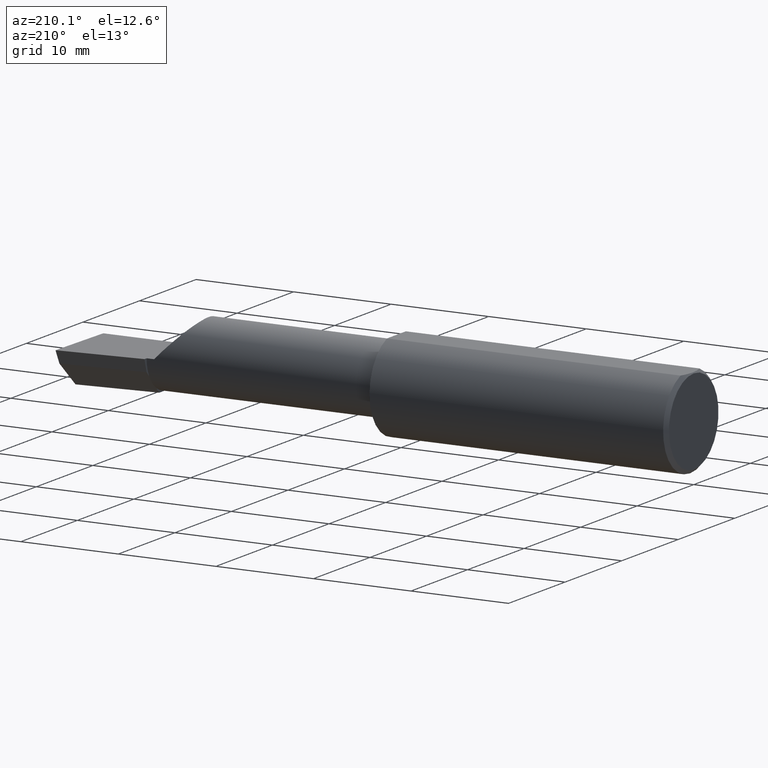
[diagram: clean part render]
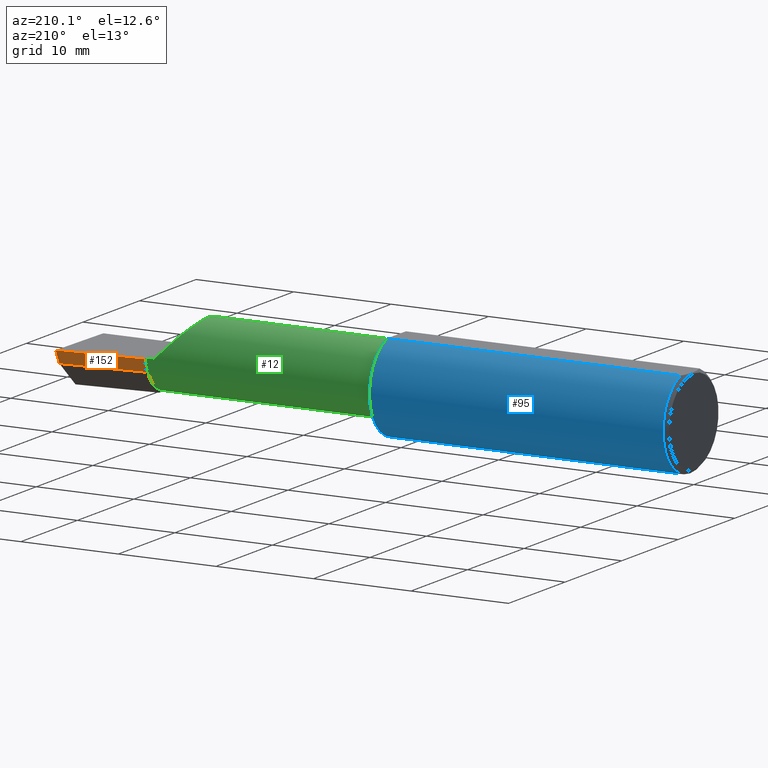
[diagram: same view with three faces highlighted in distinct colors, each labeled with its STEP entity id]
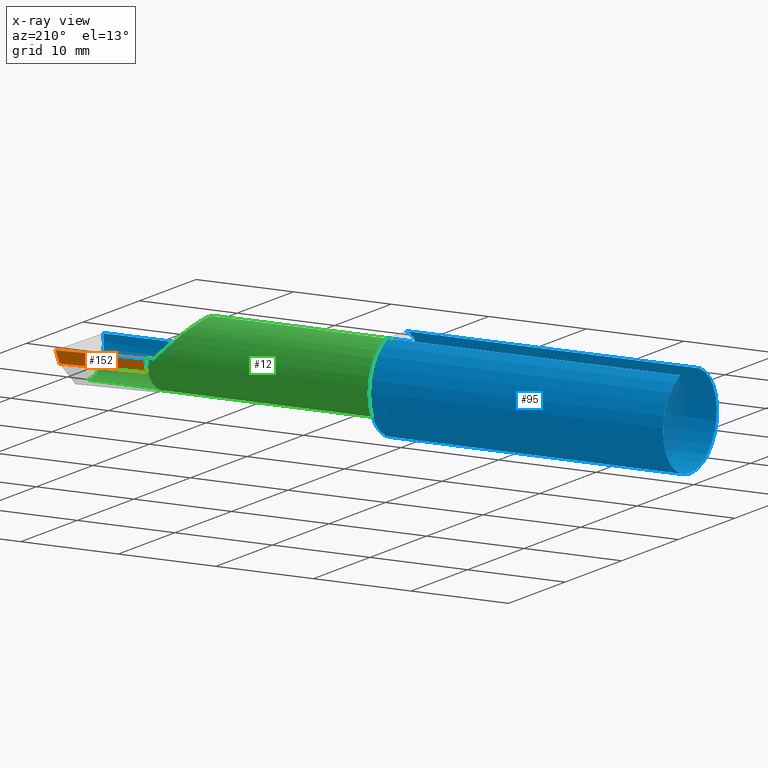
[diagram: x-ray of the same camera — body ghosted, the three highlighted faces saturated]
A machine part, auxiliary view with three faces highlighted in distinct colors.
The next image is the same camera in x-ray (body ghosted, the three faces saturated) — at least one of them is partly hidden behind the body in this view.
Their STEP definitions:

[orange] entity #152 — the highlighted planar face has unit normal (-0.0917, 0.9519, -0.2924).
#14 = DIRECTION ( 'NONE',  ( -0.9953961983671800740, -0.09584575252021031166, 0.000000000000000000 ) ) ;
#42 = VERTEX_POINT ( 'NONE', #310 ) ;
#68 = FACE_OUTER_BOUND ( 'NONE', #281, .T. ) ;
#96 = AXIS2_PLACEMENT_3D ( 'NONE', #259, #208, #403 ) ;
#108 = VECTOR ( 'NONE', #396, 39.37007874015748143 ) ;
#115 = DIRECTION ( 'NONE',  ( 2.005228508682077051E-18, -0.2936076258024061247, -0.9559260233253795702 ) ) ;
#116 = EDGE_CURVE ( 'NONE', #529, #383, #549, .T. ) ;
#134 = ORIENTED_EDGE ( 'NONE', *, *, #279, .F. ) ;
#150 = CARTESIAN_POINT ( 'NONE',  ( 2.160000000000000142, 0.08255448787293394319, -0.04999999999999999584 ) ) ;
#152 = ADVANCED_FACE ( 'NONE', ( #68 ), #360, .T. ) ;
#168 = CARTESIAN_POINT ( 'NONE',  ( 2.160000000000000142, 0.09456875743780468468, -0.01088401009027229437 ) ) ;
#208 = DIRECTION ( 'NONE',  ( -0.09165774897393341725, 0.9519021185660614393, -0.2923717047227303301 ) ) ;
#253 = CARTESIAN_POINT ( 'NONE',  ( 0.5470260790800316464, -0.05740000000000000657, 2.701812985571356346E-16 ) ) ;
#259 = CARTESIAN_POINT ( 'NONE',  ( 2.509953961983673043, 0.1316084575252021716, -6.829619984160658046E-17 ) ) ;
#273 = ORIENTED_EDGE ( 'NONE', *, *, #411, .T. ) ;
#279 = EDGE_CURVE ( 'NONE', #42, #381, #478, .T. ) ;
#281 = EDGE_LOOP ( 'NONE', ( #134, #416, #433, #273 ) ) ;
#294 = VECTOR ( 'NONE', #583, 39.37007874015748143 ) ;
#310 = CARTESIAN_POINT ( 'NONE',  ( 2.493439983562941720, 0.1146611065212078395, -0.04999999999999999584 ) ) ;
#314 = VECTOR ( 'NONE', #115, 39.37007874015748143 ) ;
#359 = LINE ( 'NONE', #496, #386 ) ;
#360 = PLANE ( 'NONE',  #96 ) ;
#381 = VERTEX_POINT ( 'NONE', #442 ) ;
#383 = VERTEX_POINT ( 'NONE', #150 ) ;
#386 = VECTOR ( 'NONE', #14, 39.37007874015748854 ) ;
#393 = LINE ( 'NONE', #253, #108 ) ;
#396 = DIRECTION ( 'NONE',  ( 0.9953961983671787417, 0.09584575252022459191, -1.028972571603813720E-16 ) ) ;
#398 = EDGE_CURVE ( 'NONE', #42, #383, #359, .T. ) ;
#403 = DIRECTION ( 'NONE',  ( 0.000000000000000000, 0.2936076258024060137, 0.9559260233253795702 ) ) ;
#411 = EDGE_CURVE ( 'NONE', #529, #381, #393, .T. ) ;
#416 = ORIENTED_EDGE ( 'NONE', *, *, #398, .T. ) ;
#433 = ORIENTED_EDGE ( 'NONE', *, *, #116, .F. ) ;
#442 = CARTESIAN_POINT ( 'NONE',  ( 2.499999999999978684, 0.1306500000000237749, 8.405341369881224661E-14 ) ) ;
#470 = CARTESIAN_POINT ( 'NONE',  ( 2.160000000000000142, 0.09791172361284168624, 3.286754617377316716E-16 ) ) ;
#478 = LINE ( 'NONE', #566, #294 ) ;
#496 = CARTESIAN_POINT ( 'NONE',  ( 2.511419111345318811, 0.1163922996227946677, -0.04999999999999999584 ) ) ;
#529 = VERTEX_POINT ( 'NONE', #470 ) ;
#549 = LINE ( 'NONE', #168, #314 ) ;
#566 = CARTESIAN_POINT ( 'NONE',  ( 2.500188977433779769, 0.1311105994646662165, 0.001440373173041438384 ) ) ;
#583 = DIRECTION ( 'NONE',  ( 0.1240019227988267692, 0.3022330132596589558, 0.9451342385281472636 ) ) ;

[blue] entity #95 — the highlighted cylindrical surface (partial cylindrical patch) has radius 4.7587 mm, axis along (-1, -0, -0).
#6 = CARTESIAN_POINT ( 'NONE',  ( 2.066758987970638284, -0.1792580844883770730, 0.06324101202936138755 ) ) ;
#9 = CARTESIAN_POINT ( 'NONE',  ( 2.038695632261437130, -0.1635956445993029529, 0.09130436773856188959 ) ) ;
#10 = EDGE_CURVE ( 'NONE', #245, #576, #148, .T. ) ;
#17 = FACE_OUTER_BOUND ( 'NONE', #329, .T. ) ;
#18 = DIRECTION ( 'NONE',  ( 0.000000000000000000, 0.000000000000000000, 1.000000000000000000 ) ) ;
#21 = AXIS2_PLACEMENT_3D ( 'NONE', #495, #151, #500 ) ;
#22 = DIRECTION ( 'NONE',  ( 0.000000000000000000, 0.000000000000000000, 1.000000000000000000 ) ) ;
#23 = CARTESIAN_POINT ( 'NONE',  ( 1.199999999999999956, -0.09715400696864127938, 0.1601908905959923690 ) ) ;
#26 = CARTESIAN_POINT ( 'NONE',  ( 1.218001859868117043, -0.1612625562479372554, 0.09537826053888157074 ) ) ;
#27 = DIRECTION ( 'NONE',  ( -1.000000000000000000, -0.000000000000000000, -0.000000000000000000 ) ) ;
#28 = EDGE_CURVE ( 'NONE', #187, #472, #323, .T. ) ;
#32 = DIRECTION ( 'NONE',  ( 0.000000000000000000, 1.000000000000000000, 0.000000000000000000 ) ) ;
#38 = CARTESIAN_POINT ( 'NONE',  ( 1.206145841430604104, -0.1426194794824340584, -0.1217813759115465855 ) ) ;
#41 = CARTESIAN_POINT ( 'NONE',  ( 2.129999999999999893, -0.1873499999999999888, 1.065442715258197396E-16 ) ) ;
#48 = B_SPLINE_CURVE_WITH_KNOTS ( 'NONE', 3,
 ( #467, #374, #133, #83, #93, #174, #275, #328, #38, #424, #537, #475, #491, #182 ),
 .UNSPECIFIED., .F., .F.,
 ( 4, 2, 2, 2, 2, 2, 4 ),
 ( 1.968340875534775581E-07, 0.0001667114270246291413, 0.0003332260199617048126, 0.0006662552058358523063, 0.001332313577584147294, 0.001998371949332442606, 0.002664430321080737702 ),
 .UNSPECIFIED. ) ;
#49 = VERTEX_POINT ( 'NONE', #453 ) ;
#52 = ORIENTED_EDGE ( 'NONE', *, *, #518, .T. ) ;
#53 = DIRECTION ( 'NONE',  ( 1.000000000000000000, 0.000000000000000000, 0.000000000000000000 ) ) ;
#58 = VECTOR ( 'NONE', #573, 39.37007874015748143 ) ;
#59 = LINE ( 'NONE', #598, #220 ) ;
#65 = CARTESIAN_POINT ( 'NONE',  ( 1.199999999999999956, -0.06597272163553659363, 0.1753499999999999781 ) ) ;
#66 = CIRCLE ( 'NONE', #306, 0.1873499999999999888 ) ;
#69 = CARTESIAN_POINT ( 'NONE',  ( 1.208072954143140088, -0.1479074971576200548, 0.1152872342625229363 ) ) ;
#72 = ORIENTED_EDGE ( 'NONE', *, *, #177, .F. ) ;
#74 = CYLINDRICAL_SURFACE ( 'NONE', #171, 0.1873499999999999888 ) ;
#79 = VERTEX_POINT ( 'NONE', #354 ) ;
#82 = ORIENTED_EDGE ( 'NONE', *, *, #263, .F. ) ;
#83 = CARTESIAN_POINT ( 'NONE',  ( 1.217975941902153636, -0.1612443294219082224, -0.09540922431498180534 ) ) ;
#87 = ORIENTED_EDGE ( 'NONE', *, *, #10, .F. ) ;
#93 = CARTESIAN_POINT ( 'NONE',  ( 1.216814909379088760, -0.1602818635245160106, -0.09702252612905261364 ) ) ;
#95 = ADVANCED_FACE ( 'NONE', ( #17 ), #74, .T. ) ;
#103 = VERTEX_POINT ( 'NONE', #157 ) ;
#125 = LINE ( 'NONE', #616, #140 ) ;
#128 = CARTESIAN_POINT ( 'NONE',  ( 1.206142321956750418, -0.1426151417460931881, 0.1217894822571231050 ) ) ;
#133 = CARTESIAN_POINT ( 'NONE',  ( 1.220881499230870304, -0.1628722075910993550, -0.09260290410947824569 ) ) ;
#140 = VECTOR ( 'NONE', #568, 39.37007874015748143 ) ;
#144 = CARTESIAN_POINT ( 'NONE',  ( 2.481080296960508580, -0.1635956445993030639, -0.09130436773856169530 ) ) ;
#148 = CIRCLE ( 'NONE', #21, 0.1873499999999999888 ) ;
#151 = DIRECTION ( 'NONE',  ( 1.000000000000000000, 6.829619984160658046E-18, 0.000000000000000000 ) ) ;
#157 = CARTESIAN_POINT ( 'NONE',  ( 1.225000000000000089, -0.1635956445993032859, -0.09130436773856132060 ) ) ;
#160 = CARTESIAN_POINT ( 'NONE',  ( 0.000000000000000000, 0.06597272163553663527, 0.1753499999999999781 ) ) ;
#163 = DIRECTION ( 'NONE',  ( -1.000000000000000000, -6.829619984160658046E-18, -0.000000000000000000 ) ) ;
#167 = CARTESIAN_POINT ( 'NONE',  ( 2.491672876940991710, -0.1873499999999999888, 6.915950918908297591E-17 ) ) ;
#170 = CARTESIAN_POINT ( 'NONE',  ( 1.220903862568968989, -0.1628809688430622460, 0.09258733509388460126 ) ) ;
#171 = AXIS2_PLACEMENT_3D ( 'NONE', #455, #27, #22 ) ;
#174 = CARTESIAN_POINT ( 'NONE',  ( 1.213743174082349885, -0.1572750258711011206, -0.1018777902325210677 ) ) ;
#176 = CARTESIAN_POINT ( 'NONE',  ( 1.203025912205683667, -0.1310442973014115942, 0.1341609063345042263 ) ) ;
#177 = EDGE_CURVE ( 'NONE', #465, #79, #66, .T. ) ;
#178 = CARTESIAN_POINT ( 'NONE',  ( 2.038695632261437130, -0.1635956445993029529, 0.09130436773856188959 ) ) ;
#180 = CARTESIAN_POINT ( 'NONE',  ( 0.01499999999999997863, -0.06597272163553657975, 0.1753499999999999781 ) ) ;
#182 = CARTESIAN_POINT ( 'NONE',  ( 1.199999999999999956, -0.09715400696864127938, -0.1601908905959923690 ) ) ;
#187 = VERTEX_POINT ( 'NONE', #144 ) ;
#197 = DIRECTION ( 'NONE',  ( -1.000000000000000000, -0.000000000000000000, -0.000000000000000000 ) ) ;
#209 = AXIS2_PLACEMENT_3D ( 'NONE', #293, #241, #32 ) ;
#212 = CARTESIAN_POINT ( 'NONE',  ( 1.200383728133729955, -0.1114837668894152756, 0.1508119329971095712 ) ) ;
#215 = CARTESIAN_POINT ( 'NONE',  ( 1.213764108097883154, -0.1573043405450773591, 0.1018329020719633271 ) ) ;
#220 = VECTOR ( 'NONE', #405, 39.37007874015748143 ) ;
#222 = CARTESIAN_POINT ( 'NONE',  ( 1.199999999999999734, -0.1045012500212954693, 0.1557348687830034384 ) ) ;
#224 = CARTESIAN_POINT ( 'NONE',  ( 0.01499999999999999424, 0.000000000000000000, 0.000000000000000000 ) ) ;
#227 = DIRECTION ( 'NONE',  ( -1.000000000000000000, -0.000000000000000000, -0.000000000000000000 ) ) ;
#241 = DIRECTION ( 'NONE',  ( 1.000000000000000000, 6.829619984160658046E-18, 0.000000000000000000 ) ) ;
#242 = EDGE_CURVE ( 'NONE', #546, #332, #347, .T. ) ;
#243 = VERTEX_POINT ( 'NONE', #427 ) ;
#245 = VERTEX_POINT ( 'NONE', #440 ) ;
#263 = EDGE_CURVE ( 'NONE', #103, #245, #48, .T. ) ;
#267 = EDGE_CURVE ( 'NONE', #49, #332, #370, .T. ) ;
#269 = VECTOR ( 'NONE', #163, 39.37007874015748143 ) ;
#275 = CARTESIAN_POINT ( 'NONE',  ( 1.212184598714912687, -0.1550322129197699017, -0.1052705638704079516 ) ) ;
#286 = ORIENTED_EDGE ( 'NONE', *, *, #302, .T. ) ;
#291 = CARTESIAN_POINT ( 'NONE',  ( 2.491672876940991710, -0.1873499999999999888, 6.915950918908297591E-17 ) ) ;
#292 = EDGE_CURVE ( 'NONE', #581, #243, #417, .T. ) ;
#293 = CARTESIAN_POINT ( 'NONE',  ( 1.199999999999999956, 0.000000000000000000, 0.000000000000000000 ) ) ;
#297 = LINE ( 'NONE', #590, #269 ) ;
#299 = B_SPLINE_CURVE_WITH_KNOTS ( 'NONE', 3,
 ( #23, #222, #212, #619, #176, #128, #69, #466, #215, #463, #26, #170, #366, #562 ),
 .UNSPECIFIED., .F., .F.,
 ( 4, 2, 2, 2, 2, 2, 4 ),
 ( 0.0002471551878304231319, 0.0008987327522055655899, 0.001550310316580708102, 0.002201887880955850831, 0.002527676663143422521, 0.002690571054237206414, 0.002853465445330989874 ),
 .UNSPECIFIED. ) ;
#302 = EDGE_CURVE ( 'NONE', #472, #546, #59, .T. ) ;
#306 = AXIS2_PLACEMENT_3D ( 'NONE', #224, #227, #421 ) ;
#322 = ORIENTED_EDGE ( 'NONE', *, *, #593, .F. ) ;
#323 =( BOUNDED_CURVE ( )  B_SPLINE_CURVE ( 3, ( #335, #397, #534, #291 ),
 .UNSPECIFIED., .F., .F. ) 
 B_SPLINE_CURVE_WITH_KNOTS ( ( 4, 4 ),
 ( 0.8516985021657653698, 1.360746882515200484 ),
 .UNSPECIFIED. ) 
 CURVE ( )  GEOMETRIC_REPRESENTATION_ITEM ( )  RATIONAL_B_SPLINE_CURVE ( ( 1.000000000000000000, 0.9785221379938656705, 0.9785221379938656705, 1.000000000000000000 ) ) 
 REPRESENTATION_ITEM ( '' )  );
#325 = VECTOR ( 'NONE', #53, 39.37007874015748143 ) ;
#328 = CARTESIAN_POINT ( 'NONE',  ( 1.208068207442170472, -0.1478915270140212235, -0.1153063024254922103 ) ) ;
#329 = EDGE_LOOP ( 'NONE', ( #585, #622, #286, #392, #375, #322, #552, #52, #519, #72, #591, #87, #82 ) ) ;
#332 = VERTEX_POINT ( 'NONE', #9 ) ;
#335 = CARTESIAN_POINT ( 'NONE',  ( 2.481080296960508580, -0.1635956445993030639, -0.09130436773856169530 ) ) ;
#347 =( BOUNDED_CURVE ( )  B_SPLINE_CURVE ( 3, ( #41, #378, #6, #178 ),
 .UNSPECIFIED., .F., .T. ) 
 B_SPLINE_CURVE_WITH_KNOTS ( ( 4, 4 ),
 ( 4.712388980384689674, 5.221437360734125122 ),
 .UNSPECIFIED. ) 
 CURVE ( )  GEOMETRIC_REPRESENTATION_ITEM ( )  RATIONAL_B_SPLINE_CURVE ( ( 1.000000000000000000, 0.9785221379938656705, 0.9785221379938656705, 1.000000000000000000 ) ) 
 REPRESENTATION_ITEM ( '' )  );
#353 = EDGE_CURVE ( 'NONE', #187, #103, #297, .T. ) ;
#354 = CARTESIAN_POINT ( 'NONE',  ( 0.01499999999999999424, 0.000000000000000000, -0.1873499999999999888 ) ) ;
#365 = CIRCLE ( 'NONE', #445, 0.1873499999999999888 ) ;
#366 = CARTESIAN_POINT ( 'NONE',  ( 1.222800914500664859, -0.1635956445997550635, 0.09130436773775207904 ) ) ;
#367 = EDGE_CURVE ( 'NONE', #465, #576, #444, .T. ) ;
#370 = LINE ( 'NONE', #389, #58 ) ;
#372 = CARTESIAN_POINT ( 'NONE',  ( 0.01499999999999999424, 0.06597272163553663527, 0.1753499999999999781 ) ) ;
#374 = CARTESIAN_POINT ( 'NONE',  ( 1.222779935319434408, -0.1635956445993033415, -0.09130436773856122346 ) ) ;
#375 = ORIENTED_EDGE ( 'NONE', *, *, #267, .F. ) ;
#378 = CARTESIAN_POINT ( 'NONE',  ( 2.097861799102314961, -0.1873500000000000165, 0.03213820089768509858 ) ) ;
#385 = EDGE_CURVE ( 'NONE', #79, #512, #365, .T. ) ;
#389 = CARTESIAN_POINT ( 'NONE',  ( 1.692500000000000115, -0.1635956445993030639, 0.09130436773856169530 ) ) ;
#392 = ORIENTED_EDGE ( 'NONE', *, *, #242, .T. ) ;
#397 = CARTESIAN_POINT ( 'NONE',  ( 2.484117089522337452, -0.1792580844883771285, -0.06324101202936134591 ) ) ;
#399 = CARTESIAN_POINT ( 'NONE',  ( 0.01499999999999999424, 0.000000000000000000, 0.000000000000000000 ) ) ;
#405 = DIRECTION ( 'NONE',  ( -1.000000000000000000, -0.000000000000000000, -0.000000000000000000 ) ) ;
#417 = CIRCLE ( 'NONE', #209, 0.1873499999999999888 ) ;
#421 = DIRECTION ( 'NONE',  ( 0.000000000000000000, 0.000000000000000000, 1.000000000000000000 ) ) ;
#424 = CARTESIAN_POINT ( 'NONE',  ( 1.203041727949557549, -0.1311116946065053745, -0.1340922927843368473 ) ) ;
#427 = CARTESIAN_POINT ( 'NONE',  ( 1.199999999999999956, -0.09715400696864127938, 0.1601908905959923690 ) ) ;
#440 = CARTESIAN_POINT ( 'NONE',  ( 1.199999999999999956, -0.09715400696864127938, -0.1601908905959923690 ) ) ;
#444 = LINE ( 'NONE', #160, #325 ) ;
#445 = AXIS2_PLACEMENT_3D ( 'NONE', #399, #197, #18 ) ;
#453 = CARTESIAN_POINT ( 'NONE',  ( 1.225000000000000089, -0.1635956445993030917, 0.09130436773856158428 ) ) ;
#455 = CARTESIAN_POINT ( 'NONE',  ( 0.000000000000000000, 0.000000000000000000, 0.000000000000000000 ) ) ;
#463 = CARTESIAN_POINT ( 'NONE',  ( 1.216855994529494112, -0.1603175578889970976, 0.09696363432848424668 ) ) ;
#465 = VERTEX_POINT ( 'NONE', #372 ) ;
#466 = CARTESIAN_POINT ( 'NONE',  ( 1.212204638458736827, -0.1550630761760525278, 0.1052254855377559584 ) ) ;
#467 = CARTESIAN_POINT ( 'NONE',  ( 1.225000000000000089, -0.1635956445993032859, -0.09130436773856132060 ) ) ;
#472 = VERTEX_POINT ( 'NONE', #167 ) ;
#475 = CARTESIAN_POINT ( 'NONE',  ( 1.200384441902395682, -0.1115101367984840525, -0.1507946173152222846 ) ) ;
#491 = CARTESIAN_POINT ( 'NONE',  ( 1.199999999999999956, -0.1045082199249681987, -0.1557306416133593385 ) ) ;
#495 = CARTESIAN_POINT ( 'NONE',  ( 1.199999999999999956, 0.000000000000000000, 0.000000000000000000 ) ) ;
#500 = DIRECTION ( 'NONE',  ( 0.000000000000000000, 1.000000000000000000, 0.000000000000000000 ) ) ;
#510 = CARTESIAN_POINT ( 'NONE',  ( 2.129999999999999893, -0.1873499999999999888, 1.065442715258197396E-16 ) ) ;
#512 = VERTEX_POINT ( 'NONE', #180 ) ;
#518 = EDGE_CURVE ( 'NONE', #581, #512, #125, .T. ) ;
#519 = ORIENTED_EDGE ( 'NONE', *, *, #385, .F. ) ;
#534 = CARTESIAN_POINT ( 'NONE',  ( 2.487725449370724817, -0.1873500000000000443, -0.03213820089768505694 ) ) ;
#537 = CARTESIAN_POINT ( 'NONE',  ( 1.201903396790307665, -0.1248165254919063050, -0.1399798634953945131 ) ) ;
#546 = VERTEX_POINT ( 'NONE', #510 ) ;
#552 = ORIENTED_EDGE ( 'NONE', *, *, #292, .F. ) ;
#562 = CARTESIAN_POINT ( 'NONE',  ( 1.225000000000000089, -0.1635956445993030917, 0.09130436773856158428 ) ) ;
#568 = DIRECTION ( 'NONE',  ( -1.000000000000000000, -0.000000000000000000, -0.000000000000000000 ) ) ;
#573 = DIRECTION ( 'NONE',  ( 1.000000000000000000, 6.829619984160658046E-18, 0.000000000000000000 ) ) ;
#576 = VERTEX_POINT ( 'NONE', #606 ) ;
#581 = VERTEX_POINT ( 'NONE', #65 ) ;
#585 = ORIENTED_EDGE ( 'NONE', *, *, #353, .F. ) ;
#590 = CARTESIAN_POINT ( 'NONE',  ( 1.692500000000000115, -0.1635956445993030639, -0.09130436773856169530 ) ) ;
#591 = ORIENTED_EDGE ( 'NONE', *, *, #367, .T. ) ;
#593 = EDGE_CURVE ( 'NONE', #243, #49, #299, .T. ) ;
#598 = CARTESIAN_POINT ( 'NONE',  ( 3.377502344341257155E-32, -0.1873499999999999610, 3.267291166268304703E-16 ) ) ;
#606 = CARTESIAN_POINT ( 'NONE',  ( 1.199999999999999956, 0.06597272163553663527, 0.1753499999999999781 ) ) ;
#616 = CARTESIAN_POINT ( 'NONE',  ( 0.000000000000000000, -0.06597272163553657975, 0.1753499999999999781 ) ) ;
#619 = CARTESIAN_POINT ( 'NONE',  ( 1.201891754936544876, -0.1247344934163568259, 0.1400506178720500594 ) ) ;
#622 = ORIENTED_EDGE ( 'NONE', *, *, #28, .T. ) ;

[green] entity #12 — the highlighted cylindrical surface (partial cylindrical patch) has radius 3.5573 mm, axis along (-1, -0, -0).
#3 = ORIENTED_EDGE ( 'NONE', *, *, #46, .F. ) ;
#9 = CARTESIAN_POINT ( 'NONE',  ( 2.038695632261437130, -0.1635956445993029529, 0.09130436773856188959 ) ) ;
#12 = ADVANCED_FACE ( 'NONE', ( #348 ), #497, .T. ) ;
#24 = CARTESIAN_POINT ( 'NONE',  ( 2.160000000000000142, -0.05739999999999999963, 0.000000000000000000 ) ) ;
#29 = VERTEX_POINT ( 'NONE', #387 ) ;
#31 = CIRCLE ( 'NONE', #340, 0.1400499999999999245 ) ;
#44 = ORIENTED_EDGE ( 'NONE', *, *, #156, .T. ) ;
#46 = EDGE_CURVE ( 'NONE', #237, #618, #129, .T. ) ;
#49 = VERTEX_POINT ( 'NONE', #453 ) ;
#58 = VECTOR ( 'NONE', #573, 39.37007874015748143 ) ;
#61 = DIRECTION ( 'NONE',  ( -1.000000000000000000, -6.829619984160658046E-18, -0.000000000000000000 ) ) ;
#62 = DIRECTION ( 'NONE',  ( -1.000000000000000000, -6.829619984160658046E-18, -0.000000000000000000 ) ) ;
#64 = CARTESIAN_POINT ( 'NONE',  ( 1.921229036482944075, -0.06260079402492431389, 0.2087709635170537925 ) ) ;
#77 = CARTESIAN_POINT ( 'NONE',  ( 2.477925907309857401, -0.1365595166907236646, -0.1227499502647107360 ) ) ;
#90 = EDGE_CURVE ( 'NONE', #332, #218, #283, .T. ) ;
#103 = VERTEX_POINT ( 'NONE', #157 ) ;
#104 = LINE ( 'NONE', #498, #600 ) ;
#105 =( BOUNDED_CURVE ( )  B_SPLINE_CURVE ( 3, ( #617, #77, #337, #522 ),
 .UNSPECIFIED., .F., .T. ) 
 B_SPLINE_CURVE_WITH_KNOTS ( ( 4, 4 ),
 ( 5.632580117768154260, 6.493234751459282528 ),
 .UNSPECIFIED. ) 
 CURVE ( )  GEOMETRIC_REPRESENTATION_ITEM ( )  RATIONAL_B_SPLINE_CURVE ( ( 1.000000000000000000, 0.9392195014330942948, 0.9392195014330942948, 1.000000000000000000 ) ) 
 REPRESENTATION_ITEM ( '' )  );
#107 = ORIENTED_EDGE ( 'NONE', *, *, #90, .T. ) ;
#113 = DIRECTION ( 'NONE',  ( 0.000000000000000000, -1.000000000000000000, -1.776356839400250465E-15 ) ) ;
#129 = CIRCLE ( 'NONE', #589, 0.1400499999999999801 ) ;
#130 = CARTESIAN_POINT ( 'NONE',  ( 2.160000000000000142, 0.01441505128072288582, -0.1202356058309980713 ) ) ;
#144 = CARTESIAN_POINT ( 'NONE',  ( 2.481080296960508580, -0.1635956445993030639, -0.09130436773856169530 ) ) ;
#156 = EDGE_CURVE ( 'NONE', #237, #184, #558, .T. ) ;
#157 = CARTESIAN_POINT ( 'NONE',  ( 1.225000000000000089, -0.1635956445993032859, -0.09130436773856132060 ) ) ;
#159 = AXIS2_PLACEMENT_3D ( 'NONE', #248, #61, #202 ) ;
#163 = DIRECTION ( 'NONE',  ( -1.000000000000000000, -6.829619984160658046E-18, -0.000000000000000000 ) ) ;
#165 = CARTESIAN_POINT ( 'NONE',  ( 1.975085956200449022, 0.08264999999999997349, 0.1549140437995493169 ) ) ;
#184 = VERTEX_POINT ( 'NONE', #221 ) ;
#187 = VERTEX_POINT ( 'NONE', #144 ) ;
#202 = DIRECTION ( 'NONE',  ( 6.829619984160658816E-18, -1.000000000000000000, 0.000000000000000000 ) ) ;
#213 = DIRECTION ( 'NONE',  ( -1.000000000000000000, -6.829619984160658046E-18, -0.000000000000000000 ) ) ;
#217 = EDGE_CURVE ( 'NONE', #187, #228, #105, .T. ) ;
#218 = VERTEX_POINT ( 'NONE', #471 ) ;
#221 = CARTESIAN_POINT ( 'NONE',  ( 2.160000000000000142, -0.05739999999999999963, -0.1400500000000000633 ) ) ;
#228 = VERTEX_POINT ( 'NONE', #586 ) ;
#234 = ORIENTED_EDGE ( 'NONE', *, *, #217, .F. ) ;
#237 = VERTEX_POINT ( 'NONE', #130 ) ;
#248 = CARTESIAN_POINT ( 'NONE',  ( 0.000000000000000000, -0.05740000000000001351, 0.000000000000000000 ) ) ;
#251 = CARTESIAN_POINT ( 'NONE',  ( 1.225000000000000089, -0.05740000000000000657, 0.000000000000000000 ) ) ;
#254 = CARTESIAN_POINT ( 'NONE',  ( 2.038695632261437130, -0.1635956445993029529, 0.09130436773856188959 ) ) ;
#256 = DIRECTION ( 'NONE',  ( 1.000000000000000000, 6.829619984160658046E-18, 0.000000000000000000 ) ) ;
#258 = CARTESIAN_POINT ( 'NONE',  ( 2.160000000000000142, -0.05739999999999999963, 0.000000000000000000 ) ) ;
#267 = EDGE_CURVE ( 'NONE', #49, #332, #370, .T. ) ;
#269 = VECTOR ( 'NONE', #163, 39.37007874015748143 ) ;
#283 =( BOUNDED_CURVE ( )  B_SPLINE_CURVE ( 3, ( #254, #64, #165, #514 ),
 .UNSPECIFIED., .F., .F. ) 
 B_SPLINE_CURVE_WITH_KNOTS ( ( 4, 4 ),
 ( 5.422530673488458852, 7.853981633974482790 ),
 .UNSPECIFIED. ) 
 CURVE ( )  GEOMETRIC_REPRESENTATION_ITEM ( )  RATIONAL_B_SPLINE_CURVE ( ( 1.000000000000000000, 0.5651045289226863666, 0.5651045289226863666, 1.000000000000000000 ) ) 
 REPRESENTATION_ITEM ( '' )  );
#297 = LINE ( 'NONE', #590, #269 ) ;
#301 = DIRECTION ( 'NONE',  ( 0.000000000000000000, -1.000000000000000000, 0.000000000000000000 ) ) ;
#308 = DIRECTION ( 'NONE',  ( 1.000000000000000000, 6.829619984160658046E-18, 0.000000000000000000 ) ) ;
#311 = ORIENTED_EDGE ( 'NONE', *, *, #345, .T. ) ;
#324 = CARTESIAN_POINT ( 'NONE',  ( 2.500000000000000000, -0.05739999999999999963, -0.1400500000000000633 ) ) ;
#332 = VERTEX_POINT ( 'NONE', #9 ) ;
#337 = CARTESIAN_POINT ( 'NONE',  ( 2.476787929832031221, -0.09887019258091189755, -0.1400500000000000078 ) ) ;
#340 = AXIS2_PLACEMENT_3D ( 'NONE', #251, #62, #301 ) ;
#343 = EDGE_CURVE ( 'NONE', #49, #103, #31, .T. ) ;
#345 = EDGE_CURVE ( 'NONE', #218, #29, #104, .T. ) ;
#348 = FACE_OUTER_BOUND ( 'NONE', #371, .T. ) ;
#353 = EDGE_CURVE ( 'NONE', #187, #103, #297, .T. ) ;
#363 = CARTESIAN_POINT ( 'NONE',  ( 2.160000000000000142, -0.05739999999999999963, 0.000000000000000000 ) ) ;
#369 = CARTESIAN_POINT ( 'NONE',  ( 2.160000000000000142, 0.06495571228477951820, -0.06814016562413281741 ) ) ;
#370 = LINE ( 'NONE', #389, #58 ) ;
#371 = EDGE_LOOP ( 'NONE', ( #234, #422, #493, #594, #107, #311, #523, #3, #44, #390 ) ) ;
#387 = CARTESIAN_POINT ( 'NONE',  ( 2.160000000000000142, 0.08265000000000004288, 3.267291166268306182E-16 ) ) ;
#389 = CARTESIAN_POINT ( 'NONE',  ( 1.692500000000000115, -0.1635956445993030639, 0.09130436773856169530 ) ) ;
#390 = ORIENTED_EDGE ( 'NONE', *, *, #460, .F. ) ;
#415 = DIRECTION ( 'NONE',  ( 0.000000000000000000, -1.000000000000000000, 0.000000000000000000 ) ) ;
#422 = ORIENTED_EDGE ( 'NONE', *, *, #353, .T. ) ;
#423 = DIRECTION ( 'NONE',  ( 0.000000000000000000, -1.000000000000000000, 0.000000000000000000 ) ) ;
#453 = CARTESIAN_POINT ( 'NONE',  ( 1.225000000000000089, -0.1635956445993030917, 0.09130436773856158428 ) ) ;
#457 = CIRCLE ( 'NONE', #560, 0.1400500000000000356 ) ;
#458 = DIRECTION ( 'NONE',  ( -1.000000000000000000, -6.829619984160658046E-18, -0.000000000000000000 ) ) ;
#460 = EDGE_CURVE ( 'NONE', #228, #184, #507, .T. ) ;
#471 = CARTESIAN_POINT ( 'NONE',  ( 2.129999999999999893, 0.08264999999999983471, 1.065442715258197396E-16 ) ) ;
#492 = VECTOR ( 'NONE', #564, 39.37007874015748143 ) ;
#493 = ORIENTED_EDGE ( 'NONE', *, *, #343, .F. ) ;
#497 = CYLINDRICAL_SURFACE ( 'NONE', #159, 0.1400499999999999801 ) ;
#498 = CARTESIAN_POINT ( 'NONE',  ( -9.564882787816662316E-19, 0.08264999999999995961, 3.267291166268304703E-16 ) ) ;
#507 = LINE ( 'NONE', #324, #492 ) ;
#514 = CARTESIAN_POINT ( 'NONE',  ( 2.129999999999999893, 0.08264999999999983471, 1.065442715258197396E-16 ) ) ;
#522 = CARTESIAN_POINT ( 'NONE',  ( 2.477873865042410806, -0.05739999999999999963, -0.1400500000000000633 ) ) ;
#523 = ORIENTED_EDGE ( 'NONE', *, *, #584, .T. ) ;
#548 = AXIS2_PLACEMENT_3D ( 'NONE', #24, #213, #415 ) ;
#558 = CIRCLE ( 'NONE', #548, 0.1400500000000000356 ) ;
#560 = AXIS2_PLACEMENT_3D ( 'NONE', #258, #458, #423 ) ;
#564 = DIRECTION ( 'NONE',  ( -1.000000000000000000, 5.691349986800549142E-18, -0.000000000000000000 ) ) ;
#573 = DIRECTION ( 'NONE',  ( 1.000000000000000000, 6.829619984160658046E-18, 0.000000000000000000 ) ) ;
#584 = EDGE_CURVE ( 'NONE', #29, #618, #457, .T. ) ;
#586 = CARTESIAN_POINT ( 'NONE',  ( 2.477873865042410806, -0.05739999999999999963, -0.1400500000000000633 ) ) ;
#589 = AXIS2_PLACEMENT_3D ( 'NONE', #363, #308, #113 ) ;
#590 = CARTESIAN_POINT ( 'NONE',  ( 1.692500000000000115, -0.1635956445993030639, -0.09130436773856169530 ) ) ;
#594 = ORIENTED_EDGE ( 'NONE', *, *, #267, .T. ) ;
#600 = VECTOR ( 'NONE', #256, 39.37007874015748143 ) ;
#617 = CARTESIAN_POINT ( 'NONE',  ( 2.481080296960508580, -0.1635956445993030639, -0.09130436773856169530 ) ) ;
#618 = VERTEX_POINT ( 'NONE', #369 ) ;